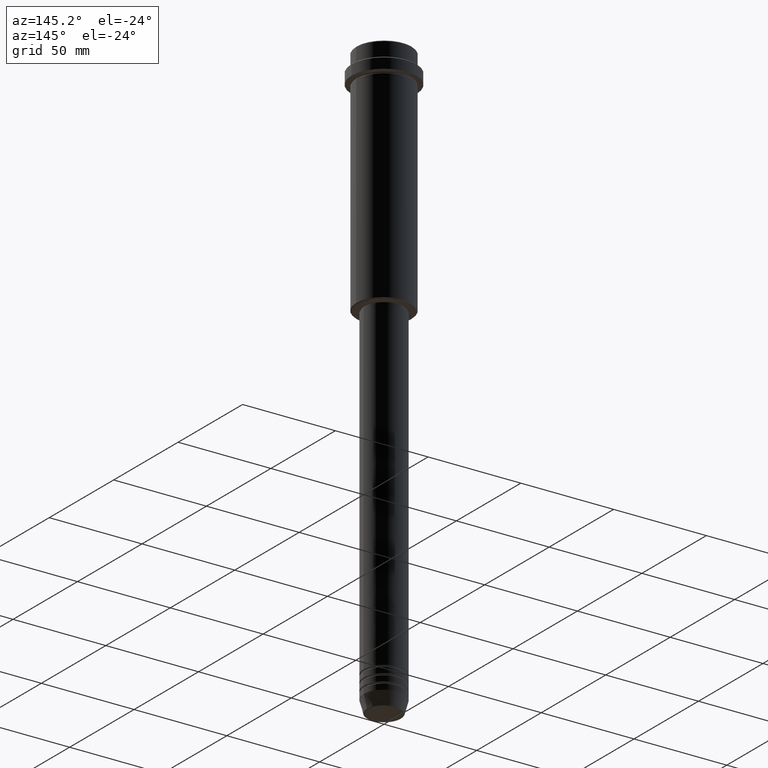
[diagram: clean part render]
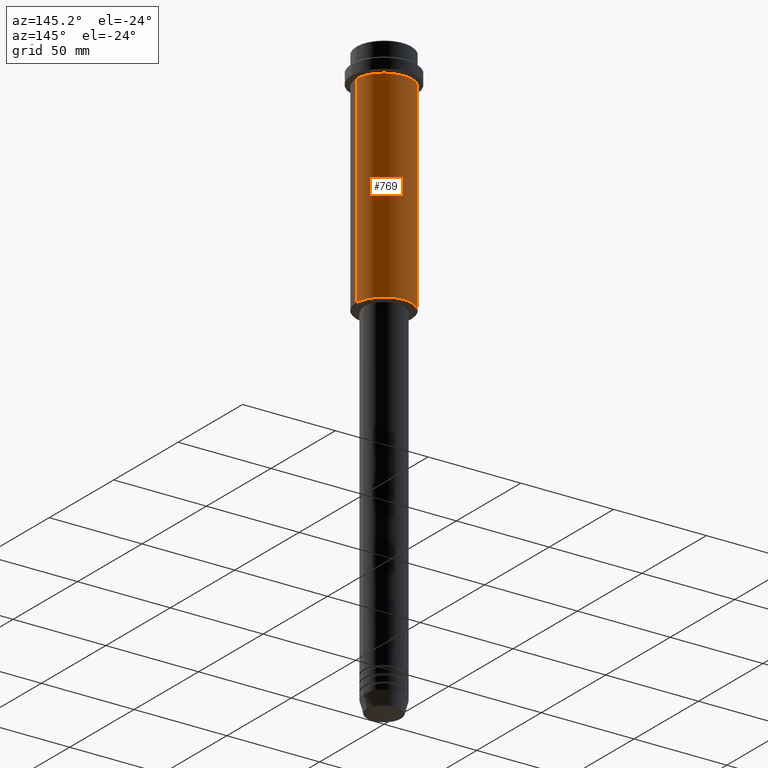
[diagram: same view with one face highlighted and labeled with its STEP entity id]
A machine part, auxiliary view. The second image highlights one B-rep face of the part: STEP entity #769.
In plain terms, the highlighted cylindrical surface (edge-blend (fillet) strip) has radius 15 mm, axis along (-0, -0, 1).
Its self-contained STEP definition (entity closure, byte-faithful):
#48 = CARTESIAN_POINT ( 'NONE',  ( 15.00000000000000000, 0.000000000000000000, 0.000000000000000000 ) ) ;
#69 = CIRCLE ( 'NONE', #1195, 15.00000000000000000 ) ;
#70 = CARTESIAN_POINT ( 'NONE',  ( 0.000000000000000000, 0.000000000000000000, 0.000000000000000000 ) ) ;
#176 = CIRCLE ( 'NONE', #982, 15.00000000000000178 ) ;
#270 = EDGE_CURVE ( 'NONE', #611, #1111, #714, .T. ) ;
#304 = EDGE_CURVE ( 'NONE', #1111, #439, #176, .T. ) ;
#365 = CARTESIAN_POINT ( 'NONE',  ( 15.00000000000000000, 0.000000000000000000, -124.4999999999998863 ) ) ;
#382 = ORIENTED_EDGE ( 'NONE', *, *, #270, .F. ) ;
#398 = CYLINDRICAL_SURFACE ( 'NONE', #1214, 15.00000000000000000 ) ;
#420 = CARTESIAN_POINT ( 'NONE',  ( 0.000000000000000000, 0.000000000000000000, -16.00000000000000000 ) ) ;
#439 = VERTEX_POINT ( 'NONE', #638 ) ;
#448 = EDGE_LOOP ( 'NONE', ( #901, #797, #691, #382 ) ) ;
#483 = DIRECTION ( 'NONE',  ( -0.000000000000000000, -0.000000000000000000, 1.000000000000000000 ) ) ;
#611 = VERTEX_POINT ( 'NONE', #365 ) ;
#638 = CARTESIAN_POINT ( 'NONE',  ( -15.00000000000000355, 1.836970198721029983E-15, -16.00000000000000000 ) ) ;
#646 = DIRECTION ( 'NONE',  ( -0.000000000000000000, -0.000000000000000000, 1.000000000000000000 ) ) ;
#691 = ORIENTED_EDGE ( 'NONE', *, *, #304, .F. ) ;
#714 = LINE ( 'NONE', #48, #827 ) ;
#725 = CARTESIAN_POINT ( 'NONE',  ( 15.00000000000000178, 0.000000000000000000, -16.00000000000000000 ) ) ;
#769 = ADVANCED_FACE ( 'NONE', ( #851 ), #398, .T. ) ;
#797 = ORIENTED_EDGE ( 'NONE', *, *, #1241, .T. ) ;
#827 = VECTOR ( 'NONE', #483, 1000.000000000000000 ) ;
#851 = FACE_OUTER_BOUND ( 'NONE', #448, .T. ) ;
#859 = CARTESIAN_POINT ( 'NONE',  ( -15.00000000000000000, 1.836970198721029589E-15, 0.000000000000000000 ) ) ;
#860 = DIRECTION ( 'NONE',  ( -0.000000000000000000, -0.000000000000000000, 1.000000000000000000 ) ) ;
#877 = DIRECTION ( 'NONE',  ( -0.000000000000000000, -0.000000000000000000, 1.000000000000000000 ) ) ;
#901 = ORIENTED_EDGE ( 'NONE', *, *, #1355, .T. ) ;
#902 = CARTESIAN_POINT ( 'NONE',  ( -15.00000000000000000, 1.836970198721029589E-15, -124.4999999999998863 ) ) ;
#943 = VERTEX_POINT ( 'NONE', #902 ) ;
#954 = DIRECTION ( 'NONE',  ( 1.000000000000000000, 0.000000000000000000, 0.000000000000000000 ) ) ;
#982 = AXIS2_PLACEMENT_3D ( 'NONE', #420, #646, #954 ) ;
#1104 = CARTESIAN_POINT ( 'NONE',  ( 0.000000000000000000, 0.000000000000000000, -124.4999999999998863 ) ) ;
#1111 = VERTEX_POINT ( 'NONE', #725 ) ;
#1195 = AXIS2_PLACEMENT_3D ( 'NONE', #1104, #877, #1303 ) ;
#1214 = AXIS2_PLACEMENT_3D ( 'NONE', #70, #860, #1298 ) ;
#1241 = EDGE_CURVE ( 'NONE', #943, #439, #1400, .T. ) ;
#1298 = DIRECTION ( 'NONE',  ( 1.000000000000000000, 0.000000000000000000, 0.000000000000000000 ) ) ;
#1302 = VECTOR ( 'NONE', #1372, 1000.000000000000000 ) ;
#1303 = DIRECTION ( 'NONE',  ( -1.000000000000000000, 0.000000000000000000, 0.000000000000000000 ) ) ;
#1355 = EDGE_CURVE ( 'NONE', #611, #943, #69, .T. ) ;
#1372 = DIRECTION ( 'NONE',  ( -0.000000000000000000, -0.000000000000000000, 1.000000000000000000 ) ) ;
#1400 = LINE ( 'NONE', #859, #1302 ) ;